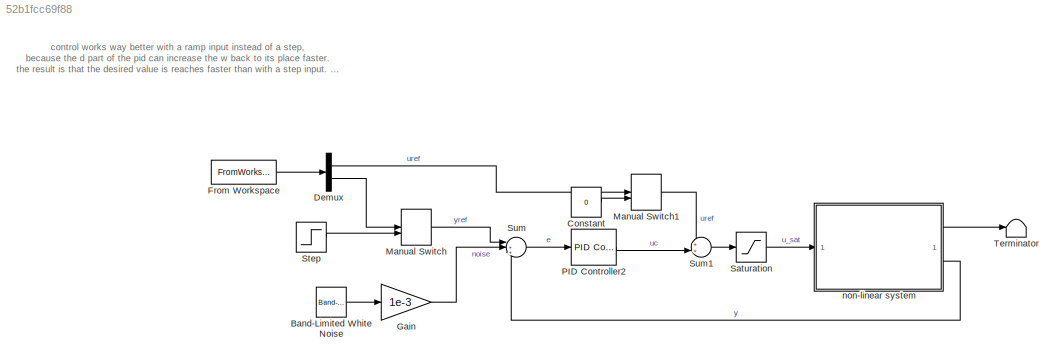
MODEL slx_52b1fcc69f88
KIND model
CONFIG AbsTol = auto
CONFIG EnableMultiTasking = off
CONFIG FixedStep = auto
CONFIG MaxStep = auto
CONFIG MinStep = auto
CONFIG RelTol = 1e-3
CONFIG SampleTimeConstraint = Unconstrained
CONFIG SolverName = VariableStepAuto
CONFIG StartTime = 0.0
CONFIG StopTime = 50
BLOCK [Reference] Band-Limited White Noise  REF=simulink/Sources/Band-Limited
White Noise
  SourceBlock = simulink/Sources/Band-Limited\nWhite Noise
  SourceType = Band-Limited White Noise.
BLOCK [Constant] Constant
  Value = 0
BLOCK [Demux] Demux
  Outputs = 2
BLOCK [FromWorkspace] From Workspace
  VariableName = simin
BLOCK [Gain] Gain
  Gain = 1e-3
BLOCK [ManualSwitch] Manual Switch
BLOCK [ManualSwitch] Manual Switch1
BLOCK [Reference] PID Controller2  REF=slpidlib/PID Controller
  LibrarySourceBlock = simulink/Continuous/PID Controller
  SourceBlock = slpidlib/PID Controller
  SourceType = PID 1dof
BLOCK [Saturate] Saturation
  LowerLimit = 0
  UpperLimit = 5
BLOCK [Step] Step
  SampleTime = 0
BLOCK [Sum] Sum
  Inputs = |++-
BLOCK [Sum] Sum1
  Inputs = ++|
BLOCK [Terminator] Terminator
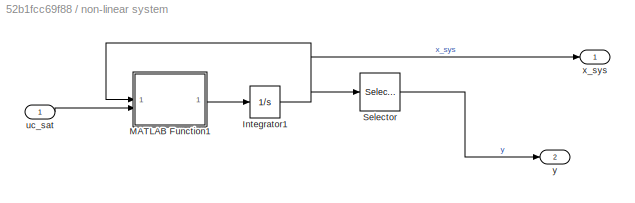
BLOCK [SubSystem] non-linear system
BLOCK [Integrator] non-linear system/Integrator1
  InitialCondition = initial
  LimitOutput = on
  LowerSaturationLimit = lower_sat
  UpperSaturationLimit = upper_sat
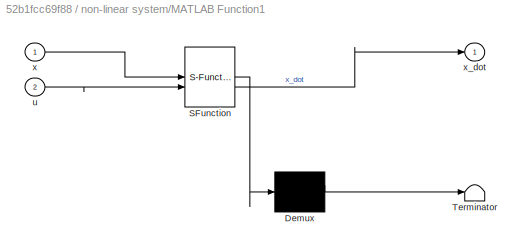
BLOCK [SubSystem] non-linear system/MATLAB Function1
  ErrorFcn = Stateflow.Translate.translate
  PermitHierarchicalResolution = ExplicitOnly
  SFBlockType = MATLAB Function
  TreatAsAtomicUnit = on
BLOCK [Demux] non-linear system/MATLAB Function1/ Demux 
  Outputs = 1
BLOCK [S-Function] non-linear system/MATLAB Function1/ SFunction 
  EnableBusSupport = on
  FunctionName = sf_sfun
  Parameters = a1,a2,a3,k_w,tau_w
  PortCounts = [2 2]
  SFcnIsStateOwnerBlock = off
  SFunctionDeploymentMode = off
  Tag = Stateflow S-Function 1
BLOCK [Terminator] non-linear system/MATLAB Function1/ Terminator 
BLOCK [Inport] non-linear system/MATLAB Function1/u
  Port = 2
BLOCK [Inport] non-linear system/MATLAB Function1/x
BLOCK [Outport] non-linear system/MATLAB Function1/x_dot
BLOCK [Selector] non-linear system/Selector
  IndexOptions = Index vector (dialog)
  Indices = 1
  InputPortWidth = 3
  OutputSizes = 1
BLOCK [Inport] non-linear system/uc_sat
BLOCK [Outport] non-linear system/x_sys
BLOCK [Outport] non-linear system/y
  Port = 2
ANNOTATION (root): control works way better with a ramp input instead of a step, because the d part of the pid can increase the w back to its place faster. the result is that the desired value is reaches faster than with a step input. -> controller is shit
LINE Band-Limited White Noise:1 -> Gain:1
LINE Constant:1 -> Manual Switch1:2
LINE Demux:1 -> Manual Switch1:1
LINE Demux:2 -> Manual Switch:1
LINE From Workspace:1 -> Demux:1
LINE Gain:1 -> Sum:2
LINE Manual Switch1:1 -> Sum1:1
LINE Manual Switch:1 -> Sum:1
LINE PID Controller2:1 -> Sum1:2
LINE Saturation:1 -> non-linear system:1
LINE Step:1 -> Manual Switch:2
LINE Sum1:1 -> Saturation:1
LINE Sum:1 -> PID Controller2:1
NET non-linear system/Integrator1:1 -> non-linear system/MATLAB Function1:1, non-linear system/Selector:1, non-linear system/x_sys:1
LINE non-linear system/MATLAB Function1:1 -> non-linear system/Integrator1:1
LINE non-linear system/Selector:1 -> non-linear system/y:1
LINE non-linear system/uc_sat:1 -> non-linear system/MATLAB Function1:2
LINE non-linear system:1 -> Terminator:1
LINE non-linear system:2 -> Sum:3
note: NET lines group one-source signal fan-out (src -> all destinations, sorted); 1:1 wires keep LINE
CHART non-linear system/MATLAB Function1 states=1 transitions=1
  STATE_LABEL 'eML_blk_kernel()'
  STATE_LABEL 'SCRIPT:\nfunction x_dot  = fcn(x,u,a1, a2, a3, tau_w, k_w)\n\n\n\n%nonlinear set of equation\nx_dot = [x(2); (a1*x(3)-a2*x(2))^2-a3; -x(3)/tau_w]+[0; 0; k_w/tau_w]*u;\n\n'
CHART  states=0 transitions=0
